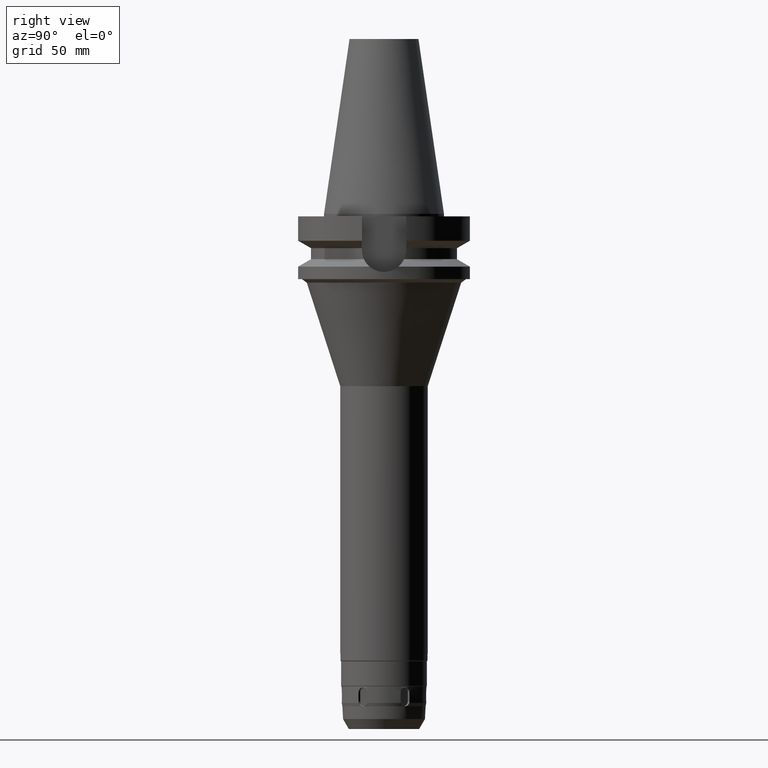
[diagram: clean part render]
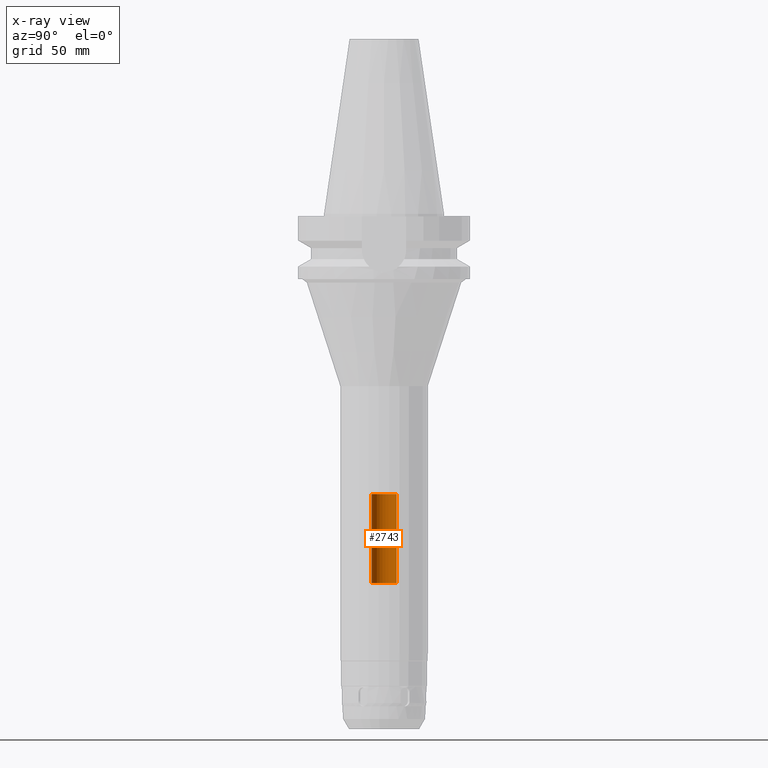
[diagram: x-ray — body ghosted, one internal face saturated and labeled with its STEP entity id]
A machine part, right view, then the same camera in x-ray: the body is ghosted and one INTERNAL B-rep face — a face not visible from any outside direction — is saturated and labeled: STEP entity #2743.
In plain terms, the highlighted cylindrical surface (edge-blend (fillet) strip) has radius 7.25 mm, axis along (0, 0, -1).
Its self-contained STEP definition (entity closure, byte-faithful):
#102=CARTESIAN_POINT('',(0.E0,2.717368782628E-14,-1.632E2));
#103=DIRECTION('',(0.E0,0.E0,1.E0));
#104=DIRECTION('',(0.E0,1.E0,0.E0));
#105=AXIS2_PLACEMENT_3D('',#102,#103,#104);
#110=DIRECTION('',(0.E0,0.E0,1.E0));
#111=VECTOR('',#110,5.18E1);
#112=CARTESIAN_POINT('',(0.E0,7.25E0,-2.15E2));
#113=LINE('',#112,#111);
#117=DIRECTION('',(0.E0,0.E0,1.E0));
#118=VECTOR('',#117,5.18E1);
#119=CARTESIAN_POINT('',(0.E0,-7.25E0,-2.15E2));
#120=LINE('',#119,#118);
#140=CARTESIAN_POINT('',(0.E0,2.717368782628E-14,-2.15E2));
#141=DIRECTION('',(0.E0,0.E0,-1.E0));
#142=DIRECTION('',(0.E0,-1.E0,0.E0));
#143=AXIS2_PLACEMENT_3D('',#140,#141,#142);
#2313=CARTESIAN_POINT('',(0.E0,-7.25E0,-1.632E2));
#2314=CARTESIAN_POINT('',(0.E0,7.25E0,-1.632E2));
#2315=VERTEX_POINT('',#2313);
#2316=VERTEX_POINT('',#2314);
#2317=CARTESIAN_POINT('',(0.E0,7.25E0,-2.15E2));
#2318=VERTEX_POINT('',#2317);
#2319=CARTESIAN_POINT('',(0.E0,-7.25E0,-2.15E2));
#2320=VERTEX_POINT('',#2319);
#2731=CARTESIAN_POINT('',(0.E0,2.717368782628E-14,1.2189E2));
#2732=DIRECTION('',(0.E0,0.E0,-1.E0));
#2733=DIRECTION('',(0.E0,-1.E0,0.E0));
#2734=AXIS2_PLACEMENT_3D('',#2731,#2732,#2733);
#2735=CYLINDRICAL_SURFACE('',#2734,7.25E0);
#2736=ORIENTED_EDGE('',*,*,#2721,.F.);
#2738=ORIENTED_EDGE('',*,*,#2737,.F.);
#2739=ORIENTED_EDGE('',*,*,#2724,.T.);
#2740=ORIENTED_EDGE('',*,*,#2711,.F.);
#2741=EDGE_LOOP('',(#2736,#2738,#2739,#2740));
#2742=FACE_OUTER_BOUND('',#2741,.F.);
#106=CIRCLE('',#105,7.25E0);
#144=CIRCLE('',#143,7.25E0);
#2711=EDGE_CURVE('',#2316,#2315,#106,.T.);
#2721=EDGE_CURVE('',#2318,#2316,#113,.T.);
#2724=EDGE_CURVE('',#2320,#2315,#120,.T.);
#2737=EDGE_CURVE('',#2320,#2318,#144,.T.);
#2743=ADVANCED_FACE('',(#2742),#2735,.F.);